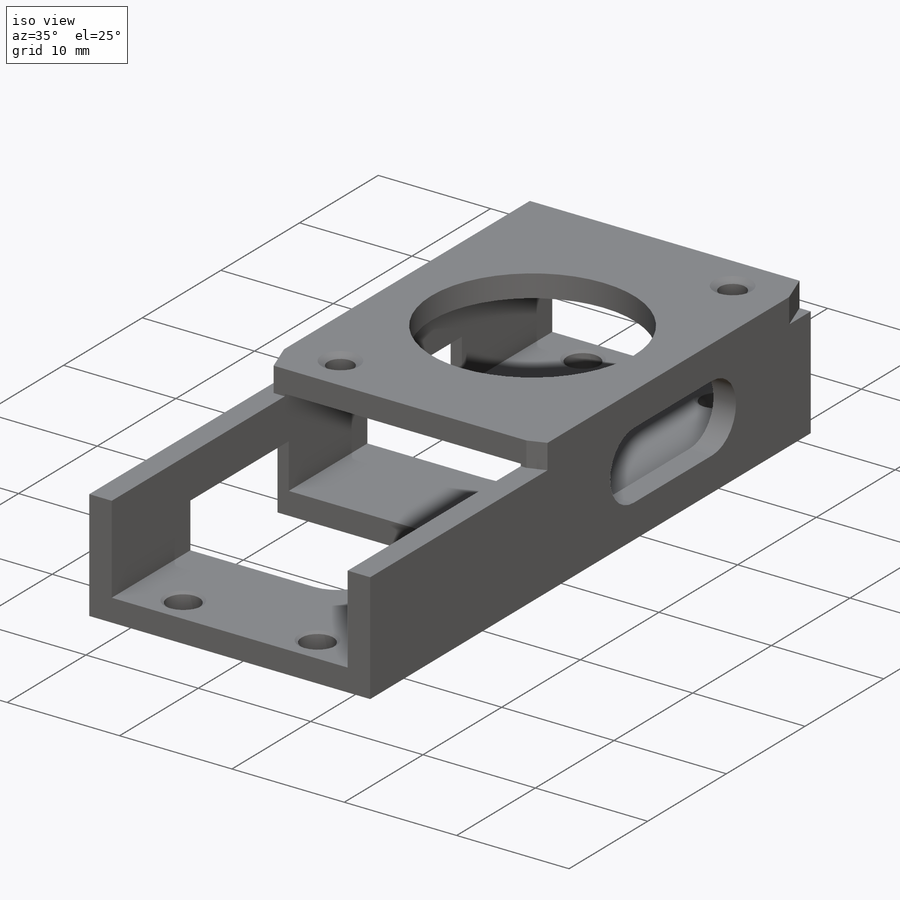
[diagram: iso view]
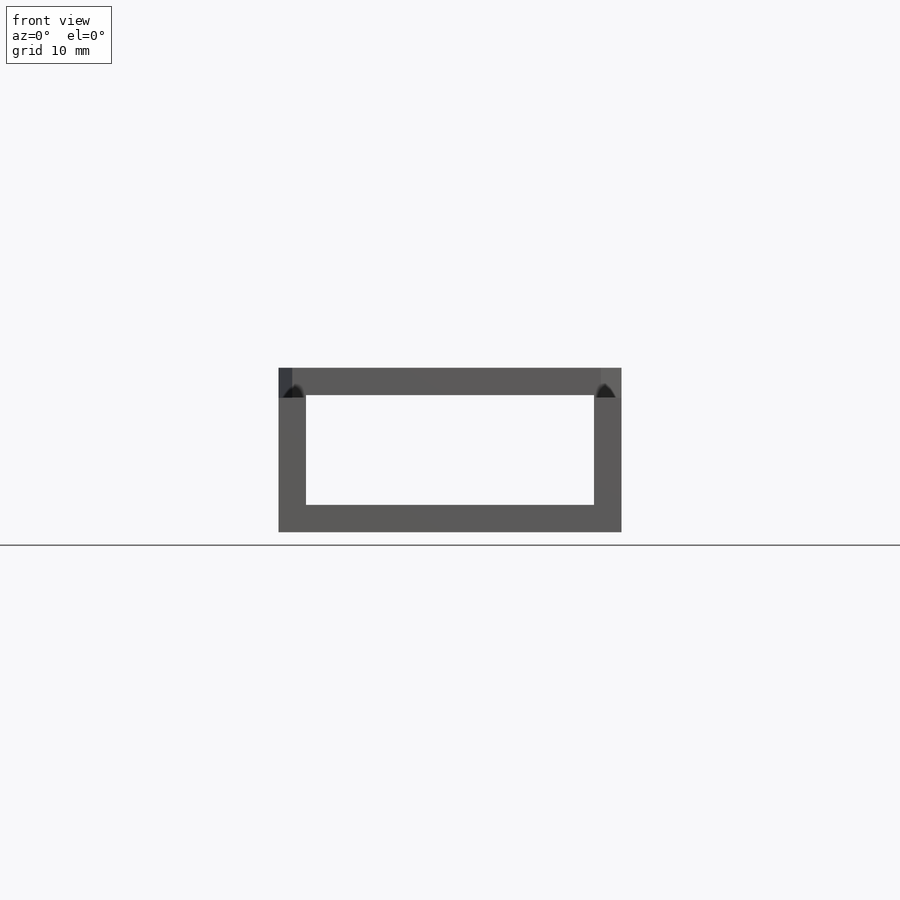
[diagram: front view]
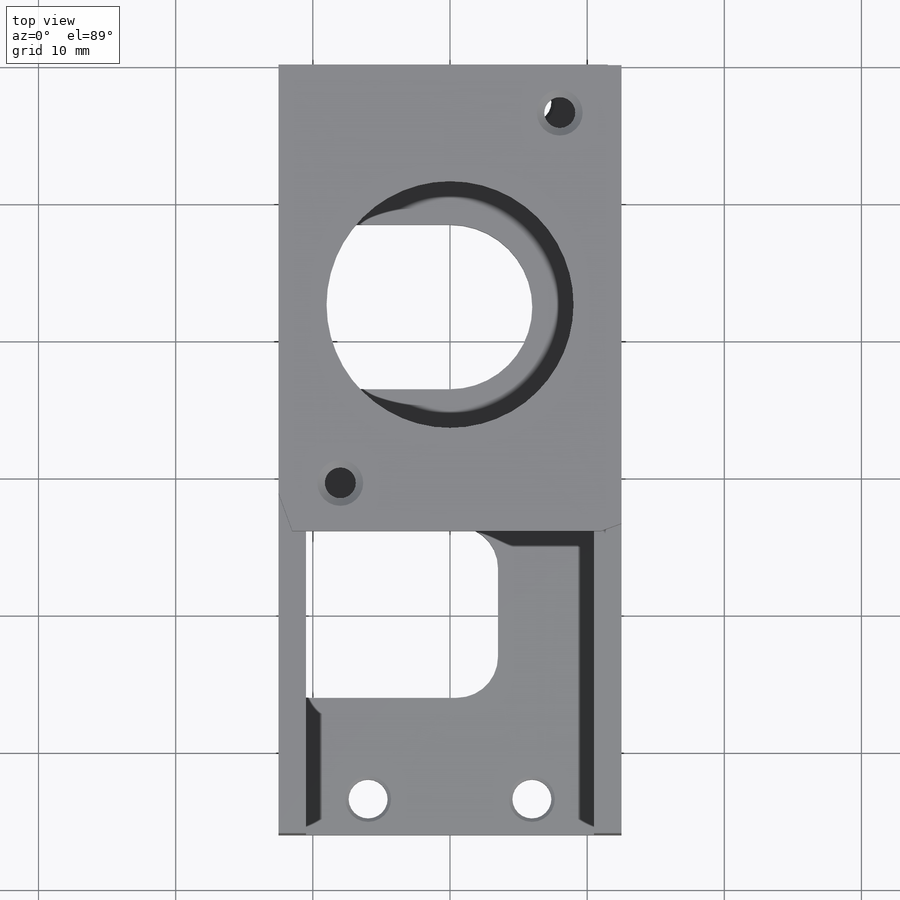
[diagram: top view]
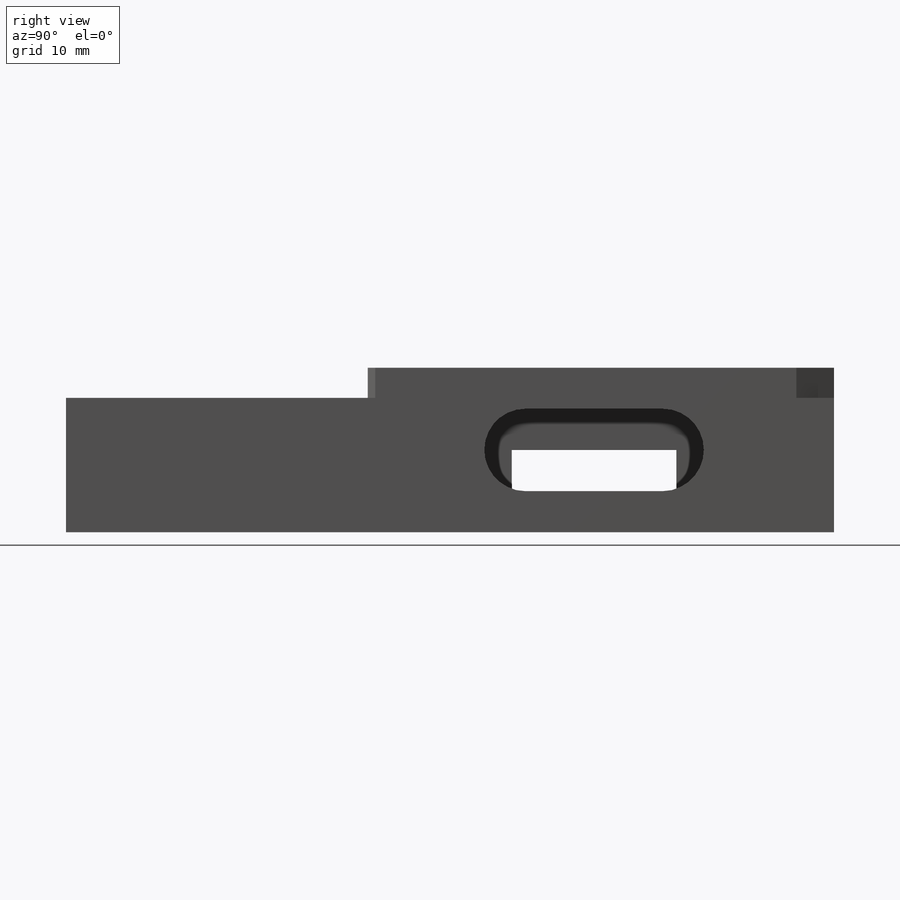
[diagram: right view]
SOLIDWORKS PART (.sldprt)
format: sldprt  version: not decoded by parser v0  size: 505,344 bytes
history: native  units: mm
features: sketch x16, cut_extrude x9, plane x3, hole x3, material x1, extrude x1 (+13 scaffold rows collapsed)
feature tree (46):
  scaffold x13  (default folders/planes/origin — collapsed)
  material  "6063-T1"
  plane  "Спереди"
  plane  "Сверху"
  plane  "Справа"
  sketch  "Эскиз1"  dims[D1=25.0mm D2=12.0mm D3=2.0mm]
  extrude  "Бобышка-Вытянуть1"  Depth=56mm
  sketch  "Эскиз2"  dims[D1=18.0mm D2=17.5mm]
  cut_extrude  "Вырез-Вытянуть1"  [1 undecoded]
  hole  "Отверстие  4-40 - 1"  [1 undecoded]
  sketch  "Эскиз4"  dims[D1=48.7mm D2=10.0mm D3=14.0mm D4=5.0mm]
  sketch  "Эскиз3"  dims[hole-wizard template sketch: 47 standard entries collapsed; hole parameters kept: c15.Глубина проходного сверла=2.0mm c15.Диаметр передней зенковки=3.3528mm c15.D4=~3.666174mm c15.Угол передней зенковки=110.0deg c15.Диаметр задней зенковки=3.3528mm c15.D6=~9.919017mm c15.Угол задней зенковки=110.0deg]
  sketch  "Эскиз5"  dims[D1=6.2mm D2=3.0mm D3=12.5mm D4=16.0mm D5=10.0mm]
  cut_extrude  "Вырез-Вытянуть2"  Depth=6mm
  sketch  "Эскиз7"  dims[c1.D2=8.0mm c1.D3=8.0mm c1.D1=1.0mm c2.D2=~10.050693mm c2.D3=3.0mm]
  cut_extrude  "Вырез-Вытянуть3"  Depth=2.5mm
  sketch  "Эскиз8"  dims[D1=3.0mm D2=7.0mm D3=16.0mm D4=2.0mm]
  cut_extrude  "Вырез-Вытянуть4"  Depth=1mm
  sketch  "Эскиз9"  dims[c1.D1=19.0mm c1.D2=1.0mm c1.D3=1.5mm c1.D4=~1.167654mm c2.D4=90.0deg c2.D5=~1.316606mm c3.D5=70.0deg c3.D6=1.0mm]
  cut_extrude  "Вырез-Вытянуть7"  [1 undecoded]
  hole  "Отверстие обработанное метчиком #4-402"  [1 undecoded]
  sketch  "Эскиз12"  dims[c1.D1=18.0mm c1.D2=18.0mm c1.D3=18.0mm c1.D4=18.0mm c2.D1=13.0mm c2.D2=8.0mm c2.D3=14.0mm c2.D4=8.0mm]
  sketch  "Эскиз11"  dims[hole-wizard template sketch: 46 standard entries collapsed; hole parameters kept: c15.Диаметр резьбы=2.2606mm c15.Глубина проходного сверла=2.0mm c15.Диаметр передней зенковки=3.3528mm c15.D4=~3.666174mm c15.Угол передней зенковки=110.0deg c15.Диаметр задней зенковки=3.3528mm c15.D6=~9.919017mm c15.Угол задней зенковки=110.0deg]
  sketch  "Эскиз13"  dims[D1=6.0mm D2=16.0mm D3=3.0mm D4=17.5mm]
  cut_extrude  "Вырез-Вытянуть8"  [1 undecoded]
  sketch  "Эскиз14"  dims[c1.D2=18.0mm c1.D4=5.0mm c1.D5=5.0mm c1.D1=~7.531454mm c2.D1=25.0deg c2.D2=10.5mm c3.D1=~17.812925mm c4.D1=25.0deg c4.D2=10.5mm c4.D3=16.0mm c4.D5=12.5mm]
  cut_extrude  "Вырез-Вытянуть9"  Depth=3mm
  sketch  "Эскиз15"  dims[D1=3.0mm D2=2.0mm D3=3.0mm D4=2.0mm]
  cut_extrude  "Вырез-Вытянуть10"  [1 undecoded]
  hole  "Зенковка для  винта с плоской головкой M31"  [1 undecoded]
  sketch  "Эскиз17"  dims[D1=12.5mm D2=16.0mm]
  sketch  "Эскиз16"  dims[hole-wizard template sketch: 54 standard entries collapsed; hole parameters kept: c17.Диаметр сквозного отверстия=3.6mm c17.Глубина сквозного отверстия=12.0mm c17.Диаметр передней зенковки=5.5mm c17.D4=~3.666174mm c17.Угол передней зенковки=90.0deg]
  sketch  "Эскиз18"  dims[c1.D2=2.0mm c1.D1=4.0mm c2.D2=4.0mm]
  cut_extrude  "Вырез-Вытянуть11"  Depth=0.7mm
decode coverage: 22 of 29 modeling features carry decoded parameters
note: ~ marks probable driven/reference dimensions
note: 7 parameter values undecoded
summary: no parameter record found for 7 features
note: suppression state not decoded; provenance and decode notes live in map.json
